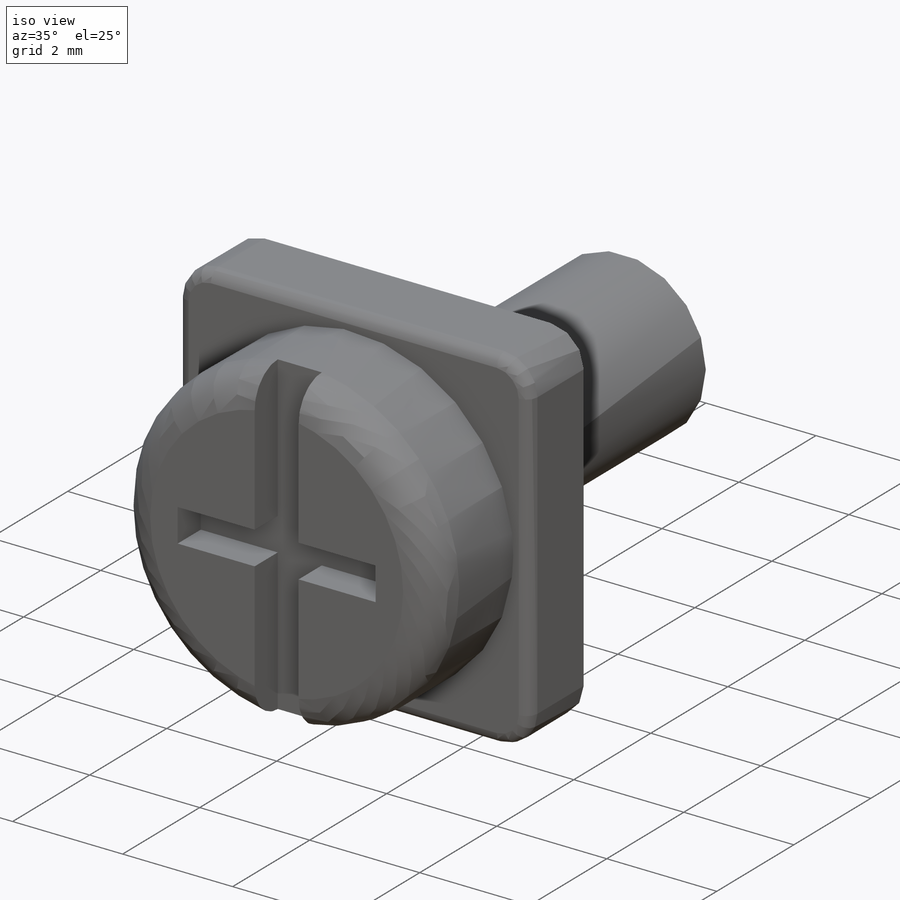
[diagram: iso view]
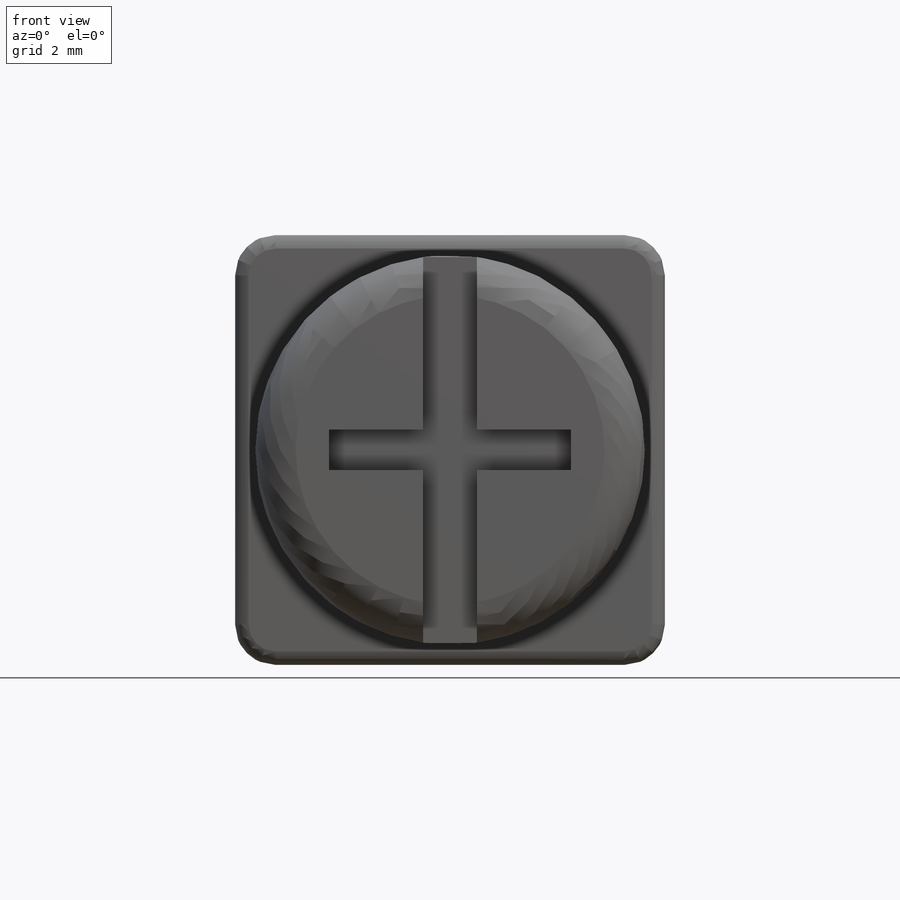
[diagram: front view]
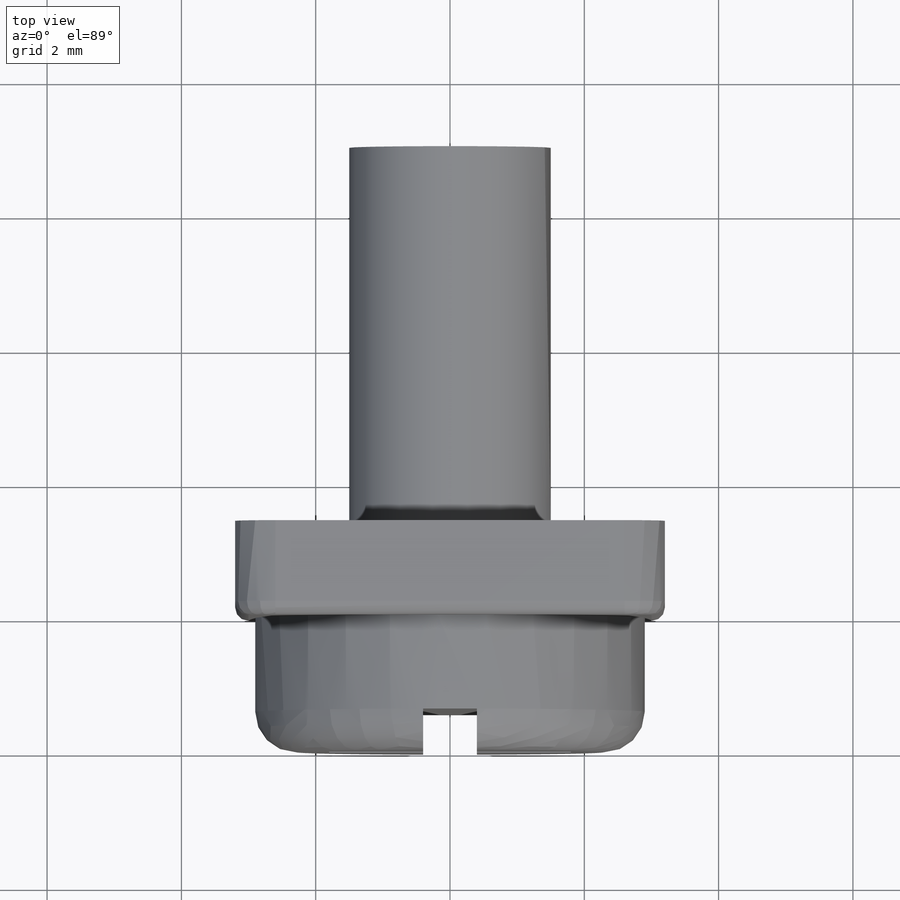
[diagram: top view]
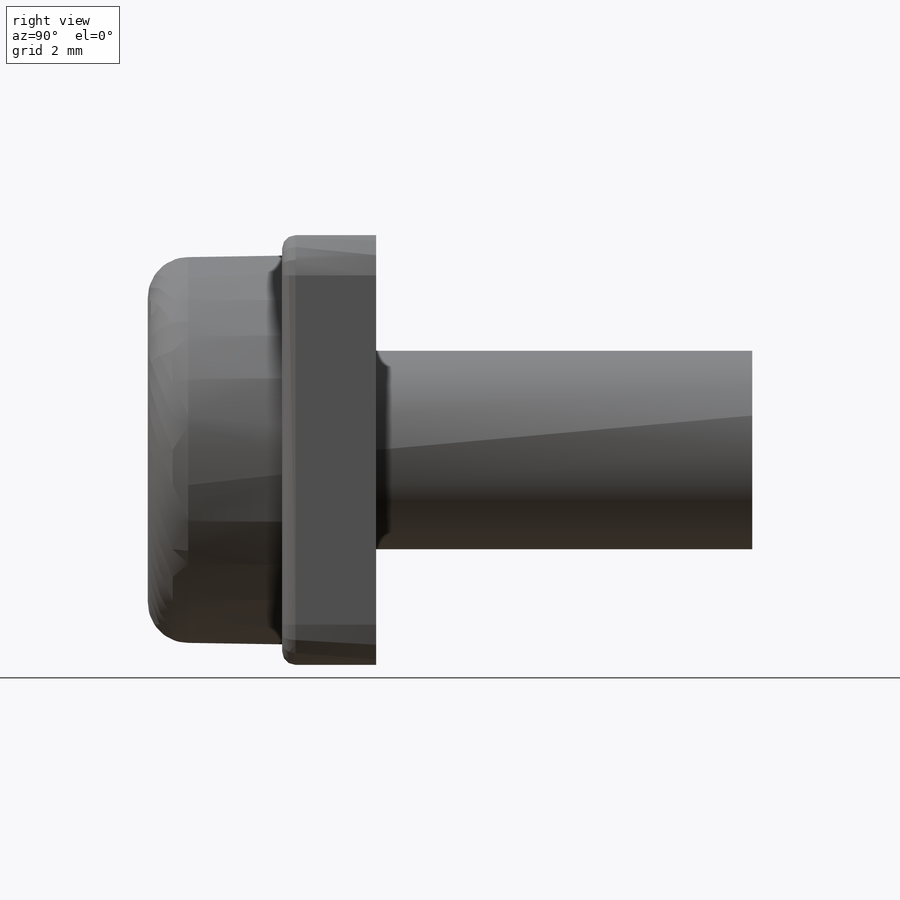
[diagram: right view]
SOLIDWORKS PART (.sldprt)
format: sldprt  version: not decoded by parser v0  size: 221,184 bytes
history: native  units: mm
features: sketch x4, extrude x3, fillet x3, material x1, cut_extrude x1 (+12 scaffold rows collapsed)
feature tree (24):
  scaffold x12  (default folders/planes/origin — collapsed)
  material  "PW110:Mi:0:2:C1:0:1:2:Re:26:"
  sketch  "Sketch1"  dims[D1=3.0mm]
  extrude  "Base-Extrude"  Depth=7mm
  sketch  "Sketch2"  dims[D1=6.4mm D2=6.4mm D3=3.2mm D4=3.2mm]
  extrude  "Boss-Extrude1"  Depth=1.4mm
  sketch  "Sketch3"  dims[D1=5.8mm]
  extrude  "Boss-Extrude2"  Depth=2mm
  sketch  "Sketch4"  dims[D1=0.8mm D2=0.4mm D3=0.6mm D4=0.3mm D5=3.6mm D6=1.8mm]
  cut_extrude  "Cut-Extrude1"  Depth=0.6mm
  fillet  "Fillet1"  Radius=0.6mm
  fillet  "Fillet2"  Radius=0.6mm
  fillet  "Fillet3"  Radius=0.2mm
decode coverage: 11 of 11 modeling features carry decoded parameters
note: suppression state not decoded; provenance and decode notes live in map.json
